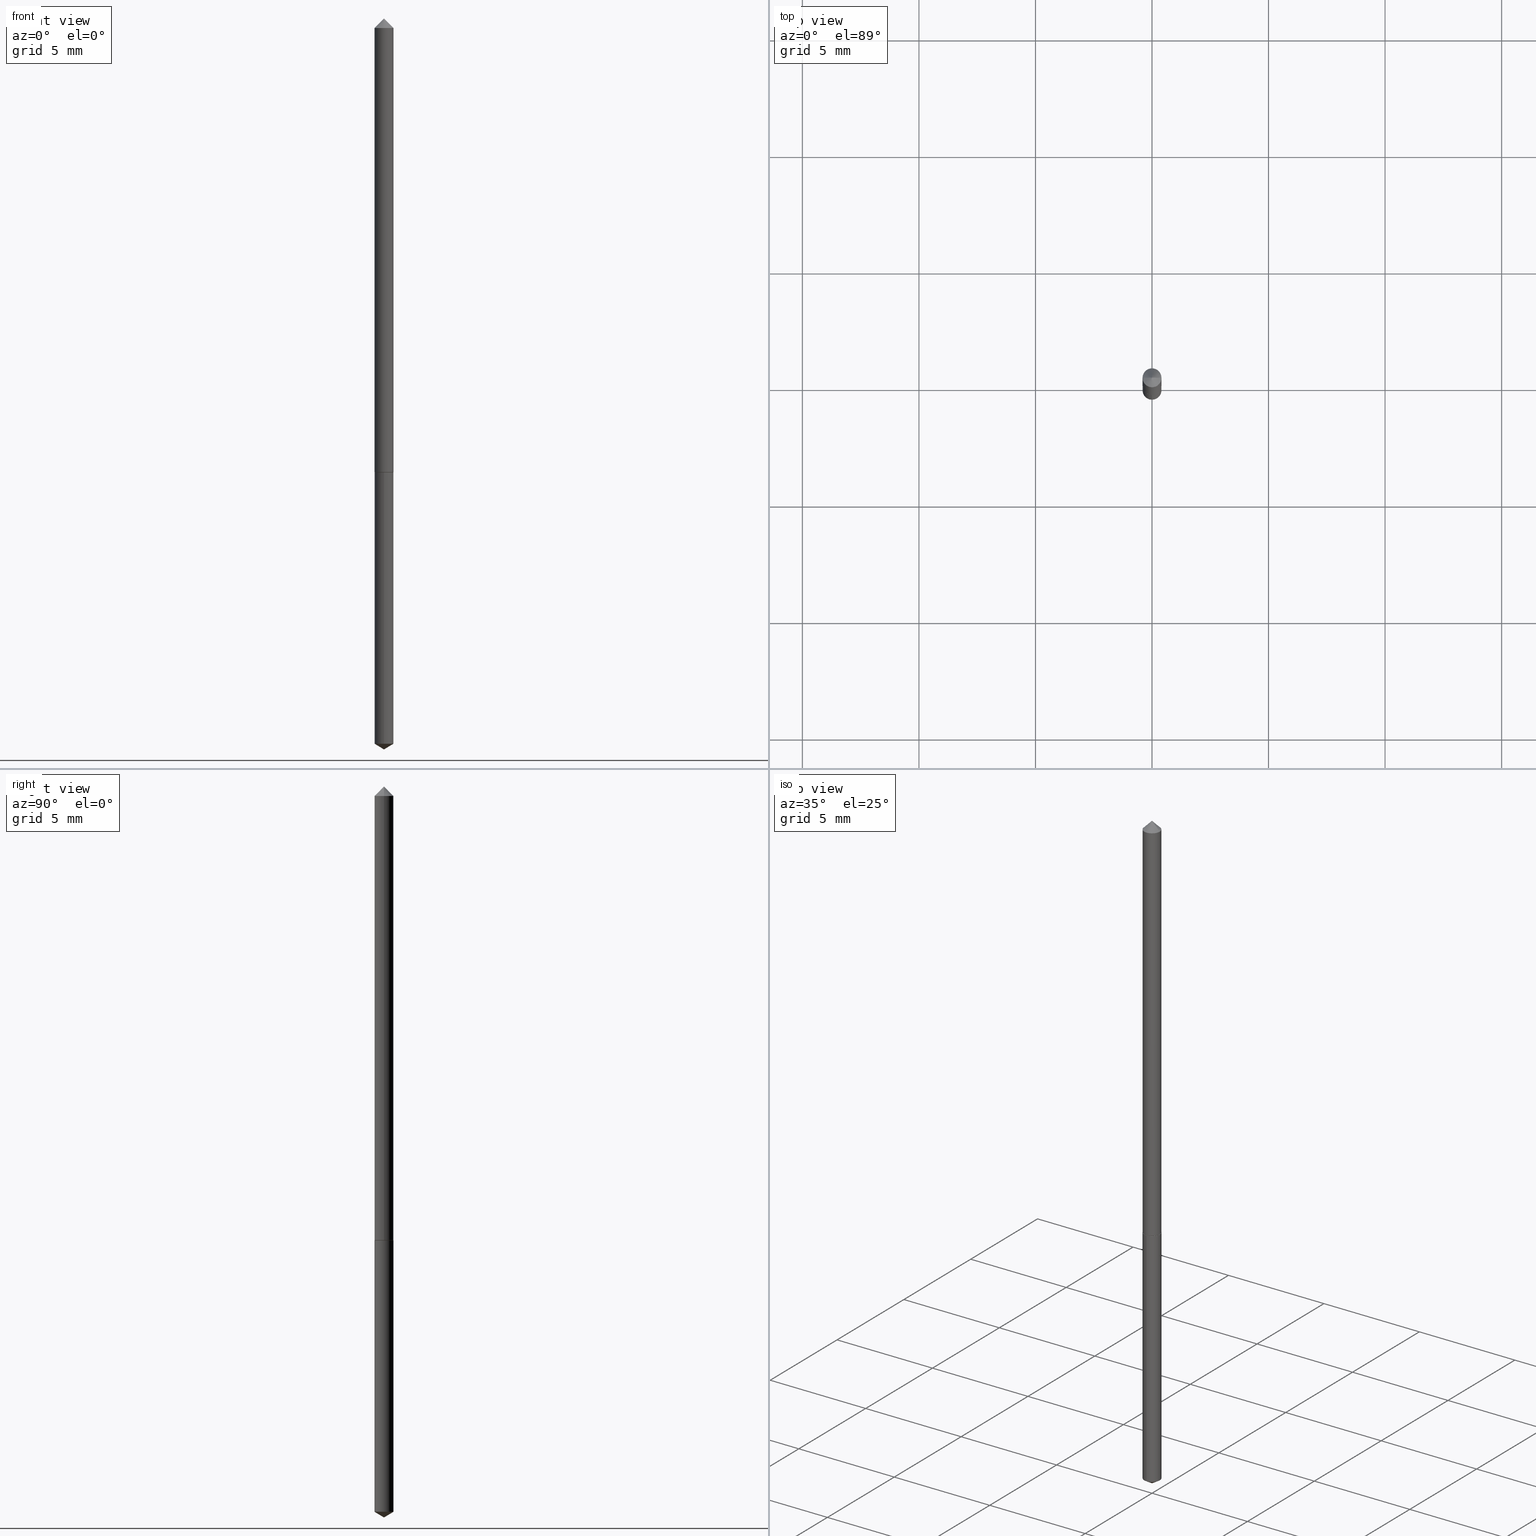
[diagram: canonical four-view strip — front | top / right | iso, engineering-drawing reading convention]
A machine part, canonical four-view strip (front | top / right | iso — engineering-drawing reading convention). The complete STEP part file that produces these views, byte-faithful:
ISO-10303-21;
HEADER;
FILE_DESCRIPTION (( 'STEP AP203' ),
    '1' );
FILE_NAME ('51067.STEP',
    '2024-04-22T18:22:37',
    ( '' ),
    ( '' ),
    'SwSTEP 2.0',
    'SolidWorks 2023',
    '' );
FILE_SCHEMA (( 'CONFIG_CONTROL_DESIGN' ));
ENDSEC;

DATA;
#1 = VECTOR ( 'NONE', #229, 39.37007874015748143 ) ;
#2 = CC_DESIGN_SECURITY_CLASSIFICATION ( #245, ( #150 ) ) ;
#3 = DIRECTION ( 'NONE',  ( -6.982962677686266711E-15, -1.000000000000000000, 3.468864327941651407E-15 ) ) ;
#4 = EDGE_LOOP ( 'NONE', ( #270, #278, #225, #19 ) ) ;
#5 = EDGE_CURVE ( 'NONE', #208, #166, #340, .T. ) ;
#6 = FACE_OUTER_BOUND ( 'NONE', #276, .T. ) ;
#7 = CARTESIAN_POINT ( 'NONE',  ( 3.056879407939828973E-29, -4.364290196483873916E-15, -1.250000000000000000 ) ) ;
#8 = CC_DESIGN_DATE_AND_TIME_ASSIGNMENT ( #243, #216, ( #12 ) ) ;
#9 = AXIS2_PLACEMENT_3D ( 'NONE', #305, #89, #3 ) ;
#10 = DIRECTION ( 'NONE',  ( 2.445468806185136597E-29, -3.491481338843145583E-15, -1.000000000000000000 ) ) ;
#11 = DIRECTION ( 'NONE',  ( -6.982962677686266711E-15, -1.000000000000000000, 0.000000000000000000 ) ) ;
#12 = PRODUCT_DEFINITION ( 'UNKNOWN', '', #150, #191 ) ;
#13 = DIRECTION ( 'NONE',  ( -2.445503149551996955E-29, 3.491432157187098739E-15, 1.000000000000000000 ) ) ;
#14 = DIRECTION ( 'NONE',  ( -2.445468806185136597E-29, 3.491481338843145583E-15, 1.000000000000000000 ) ) ;
#15 = PERSON_AND_ORGANIZATION_ROLE ( 'design_owner' ) ;
#16 = AXIS2_PLACEMENT_3D ( 'NONE', #199, #181, #344 ) ;
#17 =( NAMED_UNIT ( * ) SI_UNIT ( $, .STERADIAN. ) SOLID_ANGLE_UNIT ( ) );
#18 =( NAMED_UNIT ( * ) PLANE_ANGLE_UNIT ( ) SI_UNIT ( $, .RADIAN. ) );
#19 = ORIENTED_EDGE ( 'NONE', *, *, #62, .F. ) ;
#20 = VECTOR ( 'NONE', #59, 39.37007874015748143 ) ;
#21 = LOCAL_TIME ( 14, 22, 37.00000000000000000, #279 ) ;
#22 = DIRECTION ( 'NONE',  ( 6.982962677686265922E-15, 1.000000000000000000, -3.491432157187098739E-15 ) ) ;
#23 = DIRECTION ( 'NONE',  ( -2.445503149551996955E-29, 3.491432157187098739E-15, 1.000000000000000000 ) ) ;
#24 = PERSON_AND_ORGANIZATION ( #56, #179 ) ;
#25 = DIRECTION ( 'NONE',  ( -6.982962677686266711E-15, -1.000000000000000000, 3.468864327941651407E-15 ) ) ;
#26 = ORIENTED_EDGE ( 'NONE', *, *, #256, .T. ) ;
#27 = CIRCLE ( 'NONE', #108, 0.01600000000000000033 ) ;
#28 = AXIS2_PLACEMENT_3D ( 'NONE', #160, #351, #268 ) ;
#29 = COORDINATED_UNIVERSAL_TIME_OFFSET ( 5, 0, .BEHIND. ) ;
#30 = DATE_AND_TIME ( #356, #145 ) ;
#31 = VERTEX_POINT ( 'NONE', #361 ) ;
#32 = CIRCLE ( 'NONE', #310, 0.01600000000000000380 ) ;
#33 = DIRECTION ( 'NONE',  ( -0.7071067811865322517, 7.493145998870298940E-15, 0.7071067811865625607 ) ) ;
#34 = EDGE_CURVE ( 'NONE', #208, #93, #308, .T. ) ;
#35 = APPROVAL ( #336, 'UNSPECIFIED' ) ;
#36 = CARTESIAN_POINT ( 'NONE',  ( -0.01600000000000004891, 1.136868377216163772E-16, -7.870296144407873858E-31 ) ) ;
#37 = CARTESIAN_POINT ( 'NONE',  ( -0.01550000000000007969, -2.617555055758412828E-15, -0.7820000000000000284 ) ) ;
#38 = AXIS2_PLACEMENT_3D ( 'NONE', #269, #106, #84 ) ;
#39 = DIRECTION ( 'NONE',  ( -2.438088387897960049E-29, 3.491481338843145188E-15, 1.000000000000000000 ) ) ;
#40 = CC_DESIGN_APPROVAL ( #68, ( #245 ) ) ;
#41 = CARTESIAN_POINT ( 'NONE',  ( 0.01600000000000000380, -2.188767598031935372E-16, -0.03125000000000020123 ) ) ;
#42 = CARTESIAN_POINT ( 'NONE',  ( 3.033341575846732105E-29, -4.330762831142738852E-15, -1.240386230095559039 ) ) ;
#43 = DIRECTION ( 'NONE',  ( 1.000000000000000000, -6.982962677686261189E-15, 0.000000000000000000 ) ) ;
#44 = ORIENTED_EDGE ( 'NONE', *, *, #62, .T. ) ;
#45 = DIRECTION ( 'NONE',  ( -2.445503149551996955E-29, 3.491432157187098739E-15, 1.000000000000000000 ) ) ;
#46 = ORIENTED_EDGE ( 'NONE', *, *, #188, .F. ) ;
#47 = CARTESIAN_POINT ( 'NONE',  ( -9.322279947673812372E-28, 1.330936302878350552E-13, 38.12007874015748143 ) ) ;
#48 = EDGE_CURVE ( 'NONE', #92, #321, #357, .T. ) ;
#49 = FACE_OUTER_BOUND ( 'NONE', #107, .T. ) ;
#50 = ORIENTED_EDGE ( 'NONE', *, *, #76, .F. ) ;
#51 = AXIS2_PLACEMENT_3D ( 'NONE', #71, #341, #174 ) ;
#52 = ORIENTED_EDGE ( 'NONE', *, *, #48, .T. ) ;
#53 = DIMENSIONAL_EXPONENTS ( 1.000000000000000000, 0.000000000000000000, 0.000000000000000000, 0.000000000000000000, 0.000000000000000000, 0.000000000000000000, 0.000000000000000000 ) ;
#54 = PERSON_AND_ORGANIZATION ( #56, #179 ) ;
#55 = ORIENTED_EDGE ( 'NONE', *, *, #76, .T. ) ;
#56 = PERSON ( 'UNSPECIFIED', 'UNSPECIFIED', 'UNSPECIFIED', ('UNSPECIFIED'), ('UNSPECIFIED'), ('UNSPECIFIED') ) ;
#57 = ADVANCED_FACE ( 'NONE', ( #183 ), #239, .T. ) ;
#58 = PERSON_AND_ORGANIZATION_ROLE ( 'creator' ) ;
#59 = DIRECTION ( 'NONE',  ( -5.985567269335916825E-15, -0.8571673007021067825, 0.5150380749100633704 ) ) ;
#60 = AXIS2_PLACEMENT_3D ( 'NONE', #158, #355, #294 ) ;
#61 = APPLICATION_PROTOCOL_DEFINITION ( 'international standard', 'config_control_design', 1994, #215 ) ;
#62 = EDGE_CURVE ( 'NONE', #166, #325, #246, .T. ) ;
#63 = EDGE_LOOP ( 'NONE', ( #50, #330, #223 ) ) ;
#64 = APPROVAL_ROLE ( '' ) ;
#65 = LINE ( 'NONE', #301, #20 ) ;
#66 = ADVANCED_FACE ( 'NONE', ( #303 ), #184, .T. ) ;
#67 = ORIENTED_EDGE ( 'NONE', *, *, #362, .T. ) ;
#68 = APPROVAL ( #143, 'UNSPECIFIED' ) ;
#69 = VECTOR ( 'NONE', #204, 39.37007874015748143 ) ;
#70 = DIRECTION ( 'NONE',  ( -6.982962677686266711E-15, -1.000000000000000000, 0.000000000000000000 ) ) ;
#71 = CARTESIAN_POINT ( 'NONE',  ( 1.912356606436776888E-29, -2.730338406975340050E-15, -0.7820000000000000284 ) ) ;
#72 = DIRECTION ( 'NONE',  ( -2.445503149551996955E-29, 3.491432157187098739E-15, 1.000000000000000000 ) ) ;
#73 = CIRCLE ( 'NONE', #218, 0.01600000000000000033 ) ;
#74 = LINE ( 'NONE', #36, #334 ) ;
#75 = CYLINDRICAL_SURFACE ( 'NONE', #127, 0.01600000000000004891 ) ;
#76 = EDGE_CURVE ( 'NONE', #172, #92, #65, .T. ) ;
#77 = DIRECTION ( 'NONE',  ( -2.445468806185136597E-29, 3.491481338843145583E-15, 1.000000000000000000 ) ) ;
#78 = CARTESIAN_POINT ( 'NONE',  ( 0.01600000000000009401, -2.840320069148899113E-15, -0.7814999999999999725 ) ) ;
#79 = AXIS2_PLACEMENT_3D ( 'NONE', #285, #39, #284 ) ;
#80 = ORIENTED_EDGE ( 'NONE', *, *, #109, .T. ) ;
#81 = ORIENTED_EDGE ( 'NONE', *, *, #253, .F. ) ;
#82 = DIRECTION ( 'NONE',  ( -2.445468806185136597E-29, 3.491481338843145583E-15, 1.000000000000000000 ) ) ;
#83 = EDGE_LOOP ( 'NONE', ( #237, #299 ) ) ;
#84 = DIRECTION ( 'NONE',  ( -6.982962677686266711E-15, -1.000000000000000000, 0.000000000000000000 ) ) ;
#85 = ORIENTED_EDGE ( 'NONE', *, *, #131, .F. ) ;
#86 = CIRCLE ( 'NONE', #60, 0.01600000000000009401 ) ;
#87 = PERSON_AND_ORGANIZATION ( #56, #179 ) ;
#88 = ADVANCED_FACE ( 'NONE', ( #171 ), #230, .T. ) ;
#89 = DIRECTION ( 'NONE',  ( -2.445503149551996955E-29, 3.491432157187098739E-15, 1.000000000000000000 ) ) ;
#90 = ORIENTED_EDGE ( 'NONE', *, *, #261, .F. ) ;
#91 = APPROVAL_DATE_TIME ( #94, #202 ) ;
#92 = VERTEX_POINT ( 'NONE', #177 ) ;
#93 = VERTEX_POINT ( 'NONE', #283 ) ;
#94 = DATE_AND_TIME ( #307, #140 ) ;
#95 = DIRECTION ( 'NONE',  ( -2.445468806185136597E-29, 3.491481338843145583E-15, 1.000000000000000000 ) ) ;
#96 = CARTESIAN_POINT ( 'NONE',  ( 1.912356606436776888E-29, -2.730338406975340050E-15, -0.7820000000000000284 ) ) ;
#97 = CARTESIAN_POINT ( 'NONE',  ( 0.000000000000000000, 0.000000000000000000, 0.000000000000000000 ) ) ;
#98 = CIRCLE ( 'NONE', #255, 0.01600000000000009401 ) ;
#99 = CARTESIAN_POINT ( 'NONE',  ( 0.01550000000000007969, -2.838574328479477610E-15, -0.7820000000000000284 ) ) ;
#100 = CC_DESIGN_PERSON_AND_ORGANIZATION_ASSIGNMENT ( #324, #15, ( #228 ) ) ;
#101 = DIRECTION ( 'NONE',  ( -2.445468806185136877E-29, 3.491481338843145188E-15, 1.000000000000000000 ) ) ;
#102 = DIRECTION ( 'NONE',  ( 1.000000000000000000, -6.982962677686265133E-15, 0.000000000000000000 ) ) ;
#103 = LINE ( 'NONE', #7, #69 ) ;
#104 = EDGE_CURVE ( 'NONE', #166, #208, #121, .T. ) ;
#105 = DIRECTION ( 'NONE',  ( -6.982962677686266711E-15, -1.000000000000000000, 0.000000000000000000 ) ) ;
#106 = DIRECTION ( 'NONE',  ( -2.445503149551996955E-29, 3.491432157187098739E-15, 1.000000000000000000 ) ) ;
#107 = EDGE_LOOP ( 'NONE', ( #297, #350 ) ) ;
#108 = AXIS2_PLACEMENT_3D ( 'NONE', #312, #72, #11 ) ;
#109 = EDGE_CURVE ( 'NONE', #31, #92, #217, .T. ) ;
#110 = APPROVAL_PERSON_ORGANIZATION ( #189, #35, #141 ) ;
#111 = CARTESIAN_POINT ( 'NONE',  ( -1.117274028429611414E-16, -0.01600000000000273079, -0.7820000000000000284 ) ) ;
#112 = DIRECTION ( 'NONE',  ( 1.000000000000000000, -6.982962677686261189E-15, 0.000000000000000000 ) ) ;
#113 = APPLICATION_CONTEXT ( 'configuration controlled 3d designs of mechanical parts and assemblies' ) ;
#114 = EDGE_LOOP ( 'NONE', ( #67, #337, #219, #46 ) ) ;
#115 = COORDINATED_UNIVERSAL_TIME_OFFSET ( 5, 0, .BEHIND. ) ;
#116 = VERTEX_POINT ( 'NONE', #311 ) ;
#117 = APPROVAL_STATUS ( 'not_yet_approved' ) ;
#118 = EDGE_LOOP ( 'NONE', ( #271, #55, #222 ) ) ;
#119 = PERSON_AND_ORGANIZATION_ROLE ( 'creator' ) ;
#120 = VERTEX_POINT ( 'NONE', #130 ) ;
#121 = CIRCLE ( 'NONE', #157, 0.01550000000000007969 ) ;
#122 = LOCAL_TIME ( 14, 22, 37.00000000000000000, #331 ) ;
#123 = EDGE_CURVE ( 'NONE', #321, #247, #27, .T. ) ;
#124 = ORIENTED_EDGE ( 'NONE', *, *, #188, .T. ) ;
#125 = DIRECTION ( 'NONE',  ( -1.000000000000000000, 6.982962677686268288E-15, 0.000000000000000000 ) ) ;
#126 = DIRECTION ( 'NONE',  ( -2.445468806185136597E-29, 3.491481338843145583E-15, 1.000000000000000000 ) ) ;
#127 = AXIS2_PLACEMENT_3D ( 'NONE', #97, #126, #155 ) ;
#128 = DIRECTION ( 'NONE',  ( 1.000000000000000000, -6.982962677686261189E-15, 0.000000000000000000 ) ) ;
#129 = LINE ( 'NONE', #234, #139 ) ;
#130 = CARTESIAN_POINT ( 'NONE',  ( 0.01600000000000000380, -2.208361946818292980E-16, -0.03125000000000020123 ) ) ;
#131 = EDGE_CURVE ( 'NONE', #164, #120, #345, .T. ) ;
#132 = VECTOR ( 'NONE', #220, 39.37007874015748854 ) ;
#133 = CYLINDRICAL_SURFACE ( 'NONE', #38, 0.01600000000000000033 ) ;
#134 = ORIENTED_EDGE ( 'NONE', *, *, #265, .T. ) ;
#135 = DIRECTION ( 'NONE',  ( -1.000000000000000000, 6.982962677686268288E-15, 0.000000000000000000 ) ) ;
#136 = ADVANCED_FACE ( 'NONE', ( #338 ), #262, .T. ) ;
#137 =( LENGTH_UNIT ( ) NAMED_UNIT ( * ) SI_UNIT ( $, .METRE. ) );
#138 = EDGE_LOOP ( 'NONE', ( #214, #254, #44, #168 ) ) ;
#139 = VECTOR ( 'NONE', #101, 39.37007874015748143 ) ;
#140 = LOCAL_TIME ( 14, 22, 37.00000000000000000, #170 ) ;
#141 = APPROVAL_ROLE ( '' ) ;
#142 = ORIENTED_EDGE ( 'NONE', *, *, #207, .T. ) ;
#143 = APPROVAL_STATUS ( 'not_yet_approved' ) ;
#144 = ORIENTED_EDGE ( 'NONE', *, *, #265, .F. ) ;
#145 = LOCAL_TIME ( 14, 22, 37.00000000000000000, #29 ) ;
#146 = DIRECTION ( 'NONE',  ( 0.7071067811865452413, -7.319954787623248157E-15, -0.7071067811865497932 ) ) ;
#147 = ADVANCED_FACE ( 'NONE', ( #176 ), #201, .T. ) ;
#148 = CARTESIAN_POINT ( 'NONE',  ( 7.642090019328601786E-31, -1.091087918388490144E-16, -0.03125000000000020123 ) ) ;
#149 = CC_DESIGN_PERSON_AND_ORGANIZATION_ASSIGNMENT ( #87, #277, ( #245 ) ) ;
#150 = PRODUCT_DEFINITION_FORMATION_WITH_SPECIFIED_SOURCE ( 'ANY', '', #228, .NOT_KNOWN. ) ;
#151 = DIRECTION ( 'NONE',  ( -2.445468806185136877E-29, 3.491481338843145188E-15, 1.000000000000000000 ) ) ;
#152 = ADVANCED_FACE ( 'NONE', ( #313 ), #287, .F. ) ;
#153 = CARTESIAN_POINT ( 'NONE',  ( 1.912356606436776888E-29, -2.730338406975340050E-15, -0.7820000000000000284 ) ) ;
#154 = CC_DESIGN_PERSON_AND_ORGANIZATION_ASSIGNMENT ( #250, #119, ( #12 ) ) ;
#155 = DIRECTION ( 'NONE',  ( 1.000000000000000000, -6.982962677686267499E-15, 4.876176775795936353E-29 ) ) ;
#156 = CONICAL_SURFACE ( 'NONE', #210, 0.01600000000000009401, 0.7853981633974269627 ) ;
#157 = AXIS2_PLACEMENT_3D ( 'NONE', #153, #14, #102 ) ;
#158 = CARTESIAN_POINT ( 'NONE',  ( 1.911133872033684367E-29, -2.728592666305918152E-15, -0.7814999999999999725 ) ) ;
#159 = EDGE_CURVE ( 'NONE', #93, #116, #74, .T. ) ;
#160 = CARTESIAN_POINT ( 'NONE',  ( 0.000000000000000000, 0.000000000000000000, 0.000000000000000000 ) ) ;
#161 = DIRECTION ( 'NONE',  ( 1.000000000000000000, -6.982962677686266711E-15, 0.000000000000000000 ) ) ;
#162 =( CONVERSION_BASED_UNIT ( 'INCH', #289 ) LENGTH_UNIT ( ) NAMED_UNIT ( #53 ) );
#163 = APPROVAL_PERSON_ORGANIZATION ( #187, #68, #272 ) ;
#164 = VERTEX_POINT ( 'NONE', #231 ) ;
#165 = CALENDAR_DATE ( 2024, 22, 4 ) ;
#166 = VERTEX_POINT ( 'NONE', #99 ) ;
#167 = CLOSED_SHELL ( 'NONE', ( #298, #236, #339, #152, #88, #136, #242 ) ) ;
#168 = ORIENTED_EDGE ( 'NONE', *, *, #256, .F. ) ;
#169 = SECURITY_CLASSIFICATION_LEVEL ( 'unclassified' ) ;
#170 = COORDINATED_UNIVERSAL_TIME_OFFSET ( 5, 0, .BEHIND. ) ;
#171 = FACE_OUTER_BOUND ( 'NONE', #138, .T. ) ;
#172 = VERTEX_POINT ( 'NONE', #263 ) ;
#173 = CARTESIAN_POINT ( 'NONE',  ( -0.01600000000000009401, -2.614905828584301627E-15, -0.7814999999999999725 ) ) ;
#174 = DIRECTION ( 'NONE',  ( -6.982962677686266711E-15, -1.000000000000000000, 0.000000000000000000 ) ) ;
#175 = CC_DESIGN_DATE_AND_TIME_ASSIGNMENT ( #30, #304, ( #245 ) ) ;
#176 = FACE_OUTER_BOUND ( 'NONE', #364, .T. ) ;
#177 = CARTESIAN_POINT ( 'NONE',  ( -1.117274028429499248E-16, -0.01600000000000433020, -1.240386230095559039 ) ) ;
#178 = VECTOR ( 'NONE', #233, 39.37007874015748143 ) ;
#179 = ORGANIZATION ( 'UNSPECIFIED', 'UNSPECIFIED', '' ) ;
#180 = LINE ( 'NONE', #258, #178 ) ;
#181 = DIRECTION ( 'NONE',  ( -2.445468806185136597E-29, 3.491481338843145583E-15, 1.000000000000000000 ) ) ;
#182 = FACE_OUTER_BOUND ( 'NONE', #4, .T. ) ;
#183 = FACE_OUTER_BOUND ( 'NONE', #63, .T. ) ;
#184 = CONICAL_SURFACE ( 'NONE', #9, 65.52281426576735157, 1.029744258676647206 ) ;
#185 = DIRECTION ( 'NONE',  ( -2.445468806185136597E-29, 3.491481338843145583E-15, 1.000000000000000000 ) ) ;
#186 = FACE_OUTER_BOUND ( 'NONE', #329, .T. ) ;
#187 = PERSON_AND_ORGANIZATION ( #56, #179 ) ;
#188 = EDGE_CURVE ( 'NONE', #325, #120, #129, .T. ) ;
#189 = PERSON_AND_ORGANIZATION ( #56, #179 ) ;
#190 = AXIS2_PLACEMENT_3D ( 'NONE', #96, #195, #359 ) ;
#191 = DESIGN_CONTEXT ( 'detailed design', #215, 'design' ) ;
#192 = CARTESIAN_POINT ( 'NONE',  ( 0.01600000000000009401, -2.840320069148899113E-15, -0.7814999999999999725 ) ) ;
#193 = ORIENTED_EDGE ( 'NONE', *, *, #197, .T. ) ;
#194 = APPROVAL_DATE_TIME ( #302, #35 ) ;
#195 = DIRECTION ( 'NONE',  ( -2.445468806185136597E-29, 3.491481338843145583E-15, 1.000000000000000000 ) ) ;
#196 = LINE ( 'NONE', #309, #1 ) ;
#197 = EDGE_CURVE ( 'NONE', #120, #116, #275, .T. ) ;
#198 = AXIS2_PLACEMENT_3D ( 'NONE', #224, #95, #128 ) ;
#199 = CARTESIAN_POINT ( 'NONE',  ( 0.000000000000000000, 0.000000000000000000, 0.000000000000000000 ) ) ;
#200 = DIRECTION ( 'NONE',  ( -2.445503149551996955E-29, 3.491432157187098739E-15, 1.000000000000000000 ) ) ;
#201 = CYLINDRICAL_SURFACE ( 'NONE', #51, 0.01600000000000000033 ) ;
#202 = APPROVAL ( #117, 'UNSPECIFIED' ) ;
#203 = CONICAL_SURFACE ( 'NONE', #209, 0.01600000000000000380, 0.7853981633974450594 ) ;
#204 = DIRECTION ( 'NONE',  ( 6.090539988449753981E-15, 0.8571673007021103352, 0.5150380749100573752 ) ) ;
#205 = CARTESIAN_POINT ( 'NONE',  ( 7.642090019328601786E-31, -1.091087918388490144E-16, -0.03125000000000020123 ) ) ;
#206 = PLANE ( 'NONE',  #315 ) ;
#207 = EDGE_CURVE ( 'NONE', #164, #116, #180, .T. ) ;
#208 = VERTEX_POINT ( 'NONE', #37 ) ;
#209 = AXIS2_PLACEMENT_3D ( 'NONE', #259, #10, #125 ) ;
#210 = AXIS2_PLACEMENT_3D ( 'NONE', #240, #185, #43 ) ;
#211 = MANIFOLD_SOLID_BREP ( 'Body-Move/Copy2[1]', #260 ) ;
#212 = CARTESIAN_POINT ( 'NONE',  ( 3.033341575846732105E-29, -4.330762831142738852E-15, -1.240386230095559039 ) ) ;
#213 = EDGE_CURVE ( 'NONE', #172, #31, #103, .T. ) ;
#214 = ORIENTED_EDGE ( 'NONE', *, *, #34, .F. ) ;
#215 = APPLICATION_CONTEXT ( 'configuration controlled 3d designs of mechanical parts and assemblies' ) ;
#216 = DATE_TIME_ROLE ( 'creation_date' ) ;
#217 = CIRCLE ( 'NONE', #244, 0.01600000000000000033 ) ;
#218 = AXIS2_PLACEMENT_3D ( 'NONE', #212, #322, #354 ) ;
#219 = ORIENTED_EDGE ( 'NONE', *, *, #197, .F. ) ;
#220 = DIRECTION ( 'NONE',  ( 0.7071067811865322517, -2.468850131082098500E-15, 0.7071067811865625607 ) ) ;
#221 = PERSON_AND_ORGANIZATION_ROLE ( 'design_supplier' ) ;
#222 = ORIENTED_EDGE ( 'NONE', *, *, #109, .F. ) ;
#223 = ORIENTED_EDGE ( 'NONE', *, *, #342, .F. ) ;
#224 = CARTESIAN_POINT ( 'NONE',  ( 1.911133872033684367E-29, -2.728592666305918152E-15, -0.7814999999999999725 ) ) ;
#225 = ORIENTED_EDGE ( 'NONE', *, *, #362, .F. ) ;
#226 = CARTESIAN_POINT ( 'NONE',  ( 1.136868377216464526E-16, 0.01599999999999726988, -0.7820000000000000284 ) ) ;
#227 = CC_DESIGN_PERSON_AND_ORGANIZATION_ASSIGNMENT ( #24, #221, ( #150 ) ) ;
#228 = PRODUCT ( '51067', '51067', '', ( #318 ) ) ;
#229 = DIRECTION ( 'NONE',  ( -2.445503149551996955E-29, 3.491432157187098739E-15, 1.000000000000000000 ) ) ;
#230 = CONICAL_SURFACE ( 'NONE', #198, 0.01600000000000009401, 0.7853981633974269627 ) ;
#231 = CARTESIAN_POINT ( 'NONE',  ( 3.766598508691868103E-31, -5.271152635609575838E-17, -0.01525000000000009681 ) ) ;
#232 = CARTESIAN_POINT ( 'NONE',  ( -1.117274028429611414E-16, -0.01600000000000273079, -0.7820000000000000284 ) ) ;
#233 = DIRECTION ( 'NONE',  ( -0.7071067811865452413, 2.468850131082233000E-15, -0.7071067811865497932 ) ) ;
#234 = CARTESIAN_POINT ( 'NONE',  ( 0.01600000000000004891, -1.117274028429806164E-16, 7.801882841273521721E-31 ) ) ;
#235 = AXIS2_PLACEMENT_3D ( 'NONE', #205, #320, #135 ) ;
#236 = ADVANCED_FACE ( 'NONE', ( #316 ), #75, .T. ) ;
#237 = ORIENTED_EDGE ( 'NONE', *, *, #104, .F. ) ;
#238 = CARTESIAN_POINT ( 'NONE',  ( 7.642090019328601786E-31, -1.091087918388490144E-16, -0.03125000000000020123 ) ) ;
#239 = CONICAL_SURFACE ( 'NONE', #252, 65.52281426576735157, 1.029744258676647206 ) ;
#240 = CARTESIAN_POINT ( 'NONE',  ( 1.911133872033684367E-29, -2.728592666305918152E-15, -0.7814999999999999725 ) ) ;
#241 = ORIENTED_EDGE ( 'NONE', *, *, #131, .T. ) ;
#242 = ADVANCED_FACE ( 'NONE', ( #6 ), #203, .T. ) ;
#243 = DATE_AND_TIME ( #251, #122 ) ;
#244 = AXIS2_PLACEMENT_3D ( 'NONE', #42, #200, #70 ) ;
#245 = SECURITY_CLASSIFICATION ( '', '', #169 ) ;
#246 = LINE ( 'NONE', #192, #132 ) ;
#247 = VERTEX_POINT ( 'NONE', #226 ) ;
#248 = CALENDAR_DATE ( 2024, 22, 4 ) ;
#249 = ORIENTED_EDGE ( 'NONE', *, *, #48, .F. ) ;
#250 = PERSON_AND_ORGANIZATION ( #56, #179 ) ;
#251 = CALENDAR_DATE ( 2024, 22, 4 ) ;
#252 = AXIS2_PLACEMENT_3D ( 'NONE', #47, #23, #25 ) ;
#253 = EDGE_CURVE ( 'NONE', #31, #247, #196, .T. ) ;
#254 = ORIENTED_EDGE ( 'NONE', *, *, #5, .T. ) ;
#255 = AXIS2_PLACEMENT_3D ( 'NONE', #267, #82, #112 ) ;
#256 = EDGE_CURVE ( 'NONE', #93, #325, #86, .T. ) ;
#257 = CC_DESIGN_PERSON_AND_ORGANIZATION_ASSIGNMENT ( #360, #58, ( #150 ) ) ;
#258 = CARTESIAN_POINT ( 'NONE',  ( -0.01600000000000000380, 2.618611004131298166E-18, -0.03125000000000020123 ) ) ;
#259 = CARTESIAN_POINT ( 'NONE',  ( 7.642090019328601786E-31, -1.091087918388490144E-16, -0.03125000000000020123 ) ) ;
#260 = CLOSED_SHELL ( 'NONE', ( #273, #57, #66, #147, #347 ) ) ;
#261 = EDGE_CURVE ( 'NONE', #247, #321, #327, .T. ) ;
#262 = CYLINDRICAL_SURFACE ( 'NONE', #16, 0.01600000000000004891 ) ;
#263 = CARTESIAN_POINT ( 'NONE',  ( 3.056878936939996614E-29, -4.364290196483873916E-15, -1.250000000000000000 ) ) ;
#264 = APPLICATION_PROTOCOL_DEFINITION ( 'international standard', 'config_control_design', 1994, #113 ) ;
#265 = EDGE_CURVE ( 'NONE', #116, #120, #32, .T. ) ;
#266 = AXIS2_PLACEMENT_3D ( 'NONE', #317, #45, #105 ) ;
#267 = CARTESIAN_POINT ( 'NONE',  ( 1.911133872033684367E-29, -2.728592666305918152E-15, -0.7814999999999999725 ) ) ;
#268 = DIRECTION ( 'NONE',  ( 1.000000000000000000, 0.000000000000000000, 0.000000000000000000 ) ) ;
#269 = CARTESIAN_POINT ( 'NONE',  ( 1.912356606436776888E-29, -2.730338406975340050E-15, -0.7820000000000000284 ) ) ;
#270 = ORIENTED_EDGE ( 'NONE', *, *, #104, .T. ) ;
#271 = ORIENTED_EDGE ( 'NONE', *, *, #213, .F. ) ;
#272 = APPROVAL_ROLE ( '' ) ;
#273 = ADVANCED_FACE ( 'NONE', ( #292 ), #133, .T. ) ;
#274 = APPROVAL_DATE_TIME ( #328, #68 ) ;
#275 = CIRCLE ( 'NONE', #295, 0.01600000000000000380 ) ;
#276 = EDGE_LOOP ( 'NONE', ( #85, #142, #134 ) ) ;
#277 = PERSON_AND_ORGANIZATION_ROLE ( 'classification_officer' ) ;
#278 = ORIENTED_EDGE ( 'NONE', *, *, #34, .T. ) ;
#279 = COORDINATED_UNIVERSAL_TIME_OFFSET ( 5, 0, .BEHIND. ) ;
#280 = VECTOR ( 'NONE', #33, 39.37007874015748854 ) ;
#281 = ORIENTED_EDGE ( 'NONE', *, *, #207, .F. ) ;
#282 = CC_DESIGN_APPROVAL ( #35, ( #12 ) ) ;
#283 = CARTESIAN_POINT ( 'NONE',  ( -0.01600000000000009401, -2.614905828584301627E-15, -0.7814999999999999725 ) ) ;
#284 = DIRECTION ( 'NONE',  ( 1.000000000000000000, -6.982962677686265922E-15, 4.876176775795935793E-29 ) ) ;
#285 = CARTESIAN_POINT ( 'NONE',  ( 1.912356606436776888E-29, -2.730338406975340050E-15, -0.7820000000000000284 ) ) ;
#286 = VECTOR ( 'NONE', #13, 39.37007874015748143 ) ;
#287 = PLANE ( 'NONE',  #79 ) ;
#288 = DIRECTION ( 'NONE',  ( 1.000000000000000000, -6.982962677686266711E-15, 0.000000000000000000 ) ) ;
#289 = LENGTH_MEASURE_WITH_UNIT ( LENGTH_MEASURE( 0.02539999999999999897 ), #137 );
#290 = VECTOR ( 'NONE', #146, 39.37007874015748143 ) ;
#291 = APPROVAL_PERSON_ORGANIZATION ( #54, #202, #64 ) ;
#292 = FACE_OUTER_BOUND ( 'NONE', #335, .T. ) ;
#293 = ORIENTED_EDGE ( 'NONE', *, *, #159, .F. ) ;
#294 = DIRECTION ( 'NONE',  ( 1.000000000000000000, -6.982962677686261189E-15, 0.000000000000000000 ) ) ;
#295 = AXIS2_PLACEMENT_3D ( 'NONE', #148, #348, #288 ) ;
#296 = CARTESIAN_POINT ( 'NONE',  ( 1.912356606436776888E-29, -2.730338406975340050E-15, -0.7820000000000000284 ) ) ;
#297 = ORIENTED_EDGE ( 'NONE', *, *, #123, .T. ) ;
#298 = ADVANCED_FACE ( 'NONE', ( #186 ), #314, .T. ) ;
#299 = ORIENTED_EDGE ( 'NONE', *, *, #5, .F. ) ;
#300 = PRODUCT_RELATED_PRODUCT_CATEGORY ( 'detail', '', ( #228 ) ) ;
#301 = CARTESIAN_POINT ( 'NONE',  ( 3.056825223914227236E-29, -4.364367116593930619E-15, -1.250000000000000000 ) ) ;
#302 = DATE_AND_TIME ( #248, #21 ) ;
#303 = FACE_OUTER_BOUND ( 'NONE', #118, .T. ) ;
#304 = DATE_TIME_ROLE ( 'classification_date' ) ;
#305 = CARTESIAN_POINT ( 'NONE',  ( -9.322279947673812372E-28, 1.330936302878350552E-13, 38.12007874015748143 ) ) ;
#306 = ORIENTED_EDGE ( 'NONE', *, *, #342, .T. ) ;
#307 = CALENDAR_DATE ( 2024, 22, 4 ) ;
#308 = LINE ( 'NONE', #173, #280 ) ;
#309 = CARTESIAN_POINT ( 'NONE',  ( 1.136868377216351373E-16, 0.01599999999999726988, -0.7820000000000000284 ) ) ;
#310 = AXIS2_PLACEMENT_3D ( 'NONE', #238, #77, #161 ) ;
#311 = CARTESIAN_POINT ( 'NONE',  ( -0.01600000000000000380, -1.305163891350765523E-15, -0.03125000000000020123 ) ) ;
#312 = CARTESIAN_POINT ( 'NONE',  ( 1.912356606436776888E-29, -2.730338406975340050E-15, -0.7820000000000000284 ) ) ;
#313 = FACE_OUTER_BOUND ( 'NONE', #83, .T. ) ;
#314 = CONICAL_SURFACE ( 'NONE', #235, 0.01600000000000000380, 0.7853981633974450594 ) ;
#315 = AXIS2_PLACEMENT_3D ( 'NONE', #296, #353, #22 ) ;
#316 = FACE_OUTER_BOUND ( 'NONE', #114, .T. ) ;
#317 = CARTESIAN_POINT ( 'NONE',  ( 1.912356606436776888E-29, -2.730338406975340050E-15, -0.7820000000000000284 ) ) ;
#318 = MECHANICAL_CONTEXT ( 'NONE', #113, 'mechanical' ) ;
#319 = ORIENTED_EDGE ( 'NONE', *, *, #123, .F. ) ;
#320 = DIRECTION ( 'NONE',  ( 2.445468806185136597E-29, -3.491481338843145583E-15, -1.000000000000000000 ) ) ;
#321 = VERTEX_POINT ( 'NONE', #111 ) ;
#322 = DIRECTION ( 'NONE',  ( -2.445503149551996955E-29, 3.491432157187098739E-15, 1.000000000000000000 ) ) ;
#323 = EDGE_LOOP ( 'NONE', ( #293, #26, #124, #144 ) ) ;
#324 = PERSON_AND_ORGANIZATION ( #56, #179 ) ;
#325 = VERTEX_POINT ( 'NONE', #78 ) ;
#326 = MANIFOLD_SOLID_BREP ( 'Body-Move/Copy2[2]', #167 ) ;
#327 = CIRCLE ( 'NONE', #266, 0.01600000000000000033 ) ;
#328 = DATE_AND_TIME ( #165, #358 ) ;
#329 = EDGE_LOOP ( 'NONE', ( #281, #241, #193 ) ) ;
#330 = ORIENTED_EDGE ( 'NONE', *, *, #213, .T. ) ;
#331 = COORDINATED_UNIVERSAL_TIME_OFFSET ( 5, 0, .BEHIND. ) ;
#332 = PRODUCT_DEFINITION_SHAPE ( 'NONE', 'NONE',  #12 ) ;
#333 = UNCERTAINTY_MEASURE_WITH_UNIT (LENGTH_MEASURE( 1.000000000000000082E-05 ), #162, 'distance_accuracy_value', 'NONE');
#334 = VECTOR ( 'NONE', #151, 39.37007874015748143 ) ;
#335 = EDGE_LOOP ( 'NONE', ( #306, #352, #319, #249 ) ) ;
#336 = APPROVAL_STATUS ( 'not_yet_approved' ) ;
#337 = ORIENTED_EDGE ( 'NONE', *, *, #159, .T. ) ;
#338 = FACE_OUTER_BOUND ( 'NONE', #323, .T. ) ;
#339 = ADVANCED_FACE ( 'NONE', ( #182 ), #156, .T. ) ;
#340 = CIRCLE ( 'NONE', #190, 0.01550000000000007969 ) ;
#341 = DIRECTION ( 'NONE',  ( -2.445503149551996955E-29, 3.491432157187098739E-15, 1.000000000000000000 ) ) ;
#342 = EDGE_CURVE ( 'NONE', #92, #31, #73, .T. ) ;
#343 = CC_DESIGN_APPROVAL ( #202, ( #150 ) ) ;
#344 = DIRECTION ( 'NONE',  ( 1.000000000000000000, -6.982962677686267499E-15, 4.876176775795936353E-29 ) ) ;
#345 = LINE ( 'NONE', #41, #290 ) ;
#346 = ADVANCED_BREP_SHAPE_REPRESENTATION ( '51067', ( #211, #326, #28 ), #349 ) ;
#347 = ADVANCED_FACE ( 'NONE', ( #49 ), #206, .F. ) ;
#348 = DIRECTION ( 'NONE',  ( -2.445468806185136597E-29, 3.491481338843145583E-15, 1.000000000000000000 ) ) ;
#349 =( GEOMETRIC_REPRESENTATION_CONTEXT ( 3 ) GLOBAL_UNCERTAINTY_ASSIGNED_CONTEXT ( ( #333 ) ) GLOBAL_UNIT_ASSIGNED_CONTEXT ( ( #162, #18, #17 ) ) REPRESENTATION_CONTEXT ( 'NONE', 'WORKASPACE' ) );
#350 = ORIENTED_EDGE ( 'NONE', *, *, #261, .T. ) ;
#351 = DIRECTION ( 'NONE',  ( 0.000000000000000000, 0.000000000000000000, 1.000000000000000000 ) ) ;
#352 = ORIENTED_EDGE ( 'NONE', *, *, #253, .T. ) ;
#353 = DIRECTION ( 'NONE',  ( 2.445503149551996394E-29, -3.491432157187098739E-15, -1.000000000000000000 ) ) ;
#354 = DIRECTION ( 'NONE',  ( -6.982962677686266711E-15, -1.000000000000000000, 0.000000000000000000 ) ) ;
#355 = DIRECTION ( 'NONE',  ( -2.445468806185136597E-29, 3.491481338843145583E-15, 1.000000000000000000 ) ) ;
#356 = CALENDAR_DATE ( 2024, 22, 4 ) ;
#357 = LINE ( 'NONE', #232, #286 ) ;
#358 = LOCAL_TIME ( 14, 22, 37.00000000000000000, #115 ) ;
#359 = DIRECTION ( 'NONE',  ( 1.000000000000000000, -6.982962677686265133E-15, 0.000000000000000000 ) ) ;
#360 = PERSON_AND_ORGANIZATION ( #56, #179 ) ;
#361 = CARTESIAN_POINT ( 'NONE',  ( 1.136868377216463539E-16, 0.01599999999999566699, -1.240386230095559039 ) ) ;
#362 = EDGE_CURVE ( 'NONE', #325, #93, #98, .T. ) ;
#363 = SHAPE_DEFINITION_REPRESENTATION ( #332, #346 ) ;
#364 = EDGE_LOOP ( 'NONE', ( #81, #80, #52, #90 ) ) ;
ENDSEC;
END-ISO-10303-21;
